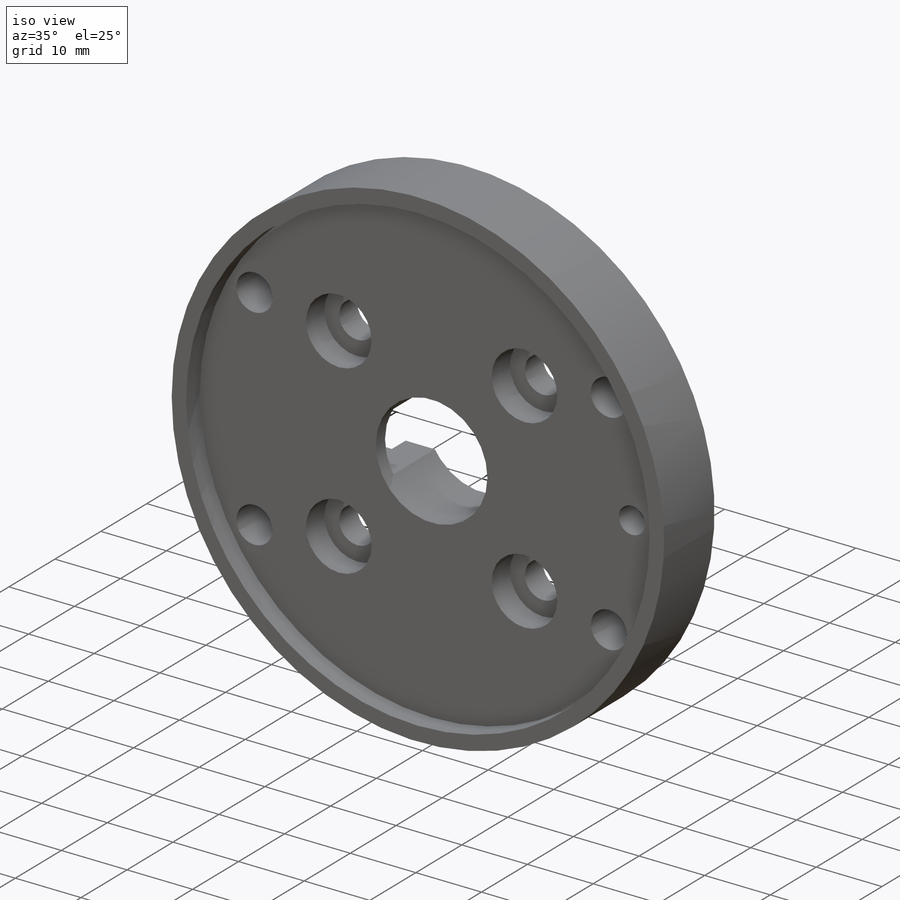
[diagram: iso view]
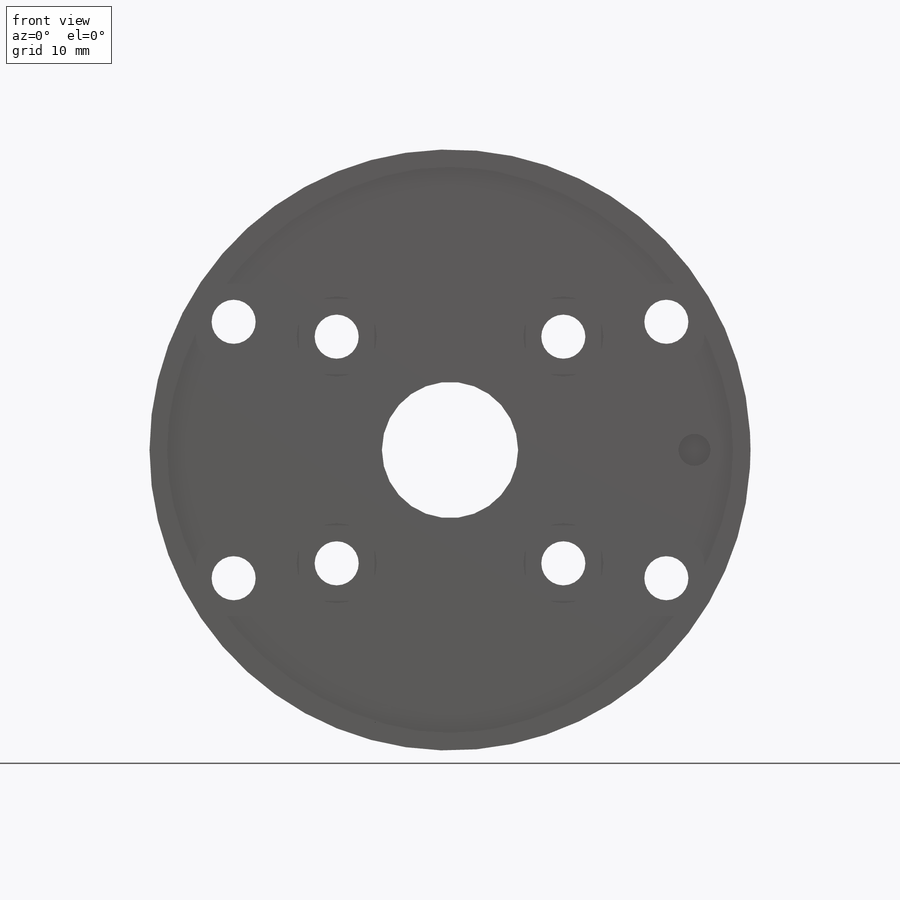
[diagram: front view]
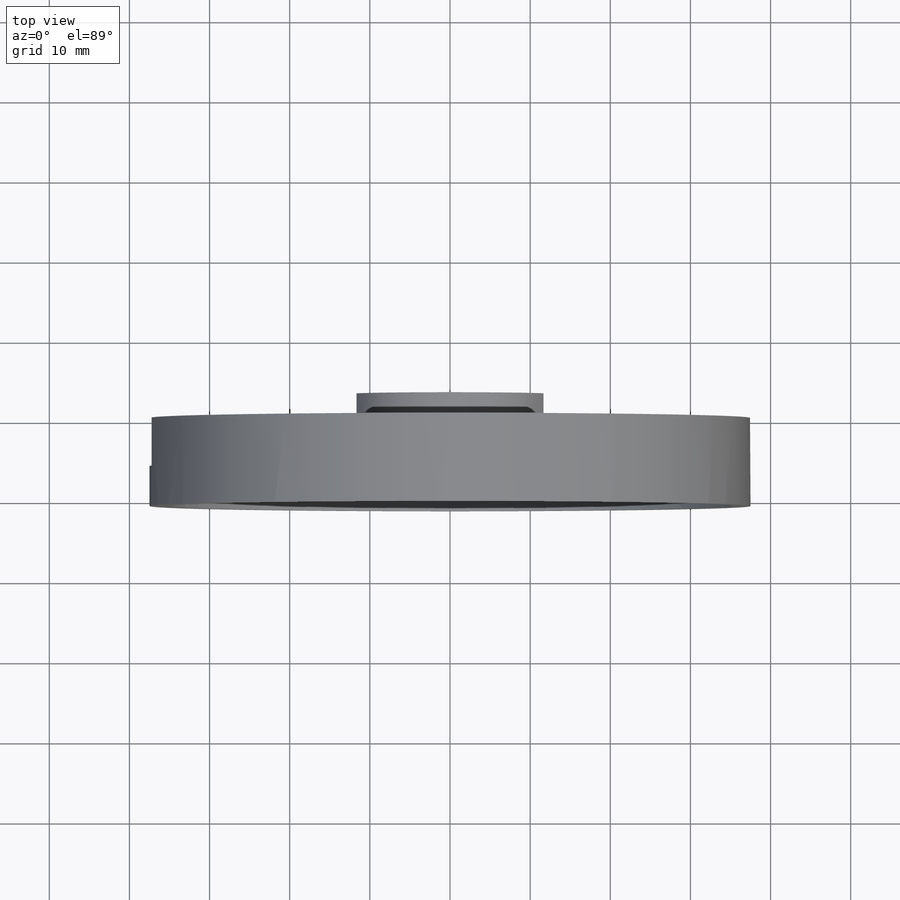
[diagram: top view]
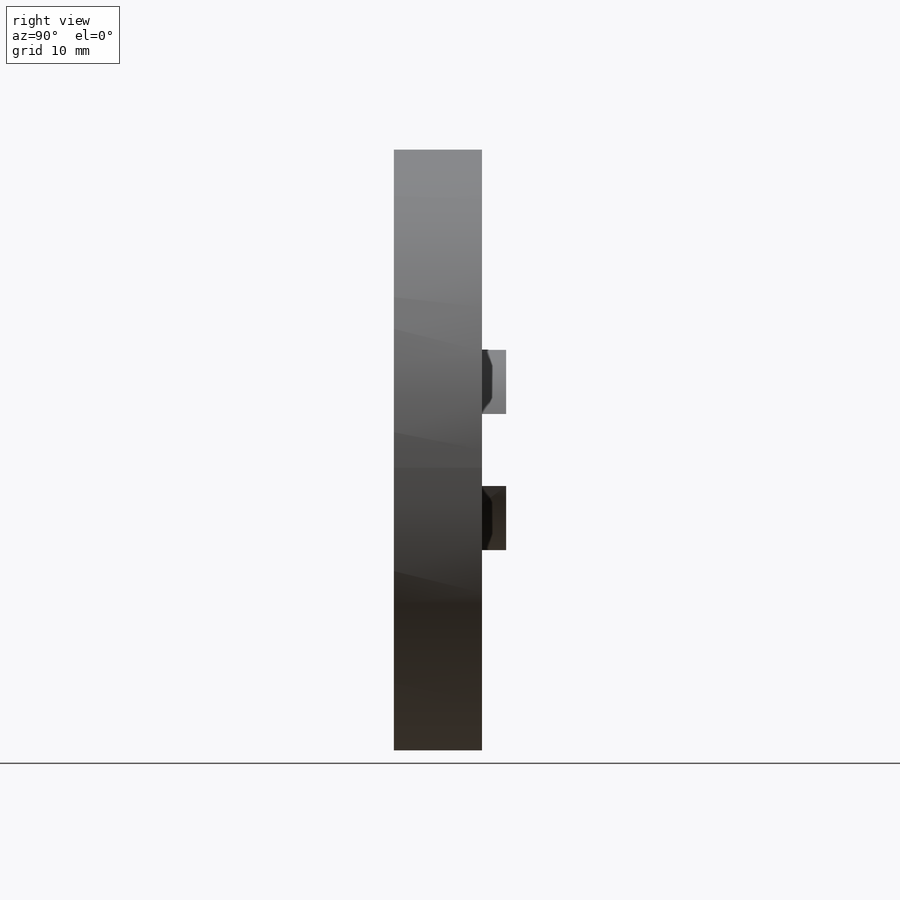
[diagram: right view]
SOLIDWORKS PART (.sldprt)
format: sldprt  version: not decoded by parser v0  size: 302,592 bytes
history: native  units: mm
features: sketch x9, cut_extrude x5, extrude x2, material x1, hole x1 (+13 scaffold rows collapsed)
feature tree (31):
  scaffold x13  (default folders/planes/origin — collapsed)
  material  "1060 Alloy"
  sketch  "Sketch1"  dims[D1=75.0mm]
  extrude  "Boss-Extrude1"  Depth=11mm
  sketch  "Sketch2"  dims[D1=2.2mm]
  cut_extrude  "Cut-Extrude1"  Depth=3mm
  sketch  "Sketch3"  dims[D1=25.0mm]
  extrude  "Boss-Extrude2"  Depth=3mm
  sketch  "Sketch4"  dims[D1=4.0mm]
  cut_extrude  "Cut-Extrude2"  [1 undecoded]
  sketch  "Sketch5"  dims[D3=2.5mm D1=9.0mm D2=21.0mm]
  cut_extrude  "Cut-Extrude3"  Depth=6mm
  sketch  "Sketch6"  dims[D1=5.5mm D2=32.0mm D3=54.0mm]
  cut_extrude  "Cut-Extrude4"  [1 undecoded]
  sketch  "Sketch7"  dims[D1=4.0mm D2=30.5mm]
  cut_extrude  "Cut-Extrude5"  Depth=4.2mm
  hole  "CBORE for M5 Hex Head Bolt1"  Diameter=5.5mm Depth=11mm
  sketch  "Sketch9"  dims[D1=20.0mm]
  sketch  "Sketch8"  dims[hole-wizard template sketch: 42 standard entries collapsed; hole parameters kept: c12.Thru Hole Depth=11.0mm c12.C'Bore Dia.=10.0mm c12.C'Bore Depth=4.0mm]
decode coverage: 15 of 17 modeling features carry decoded parameters
note: ~ marks probable driven/reference dimensions
note: 2 parameter values undecoded
note: suppression state not decoded; provenance and decode notes live in map.json
